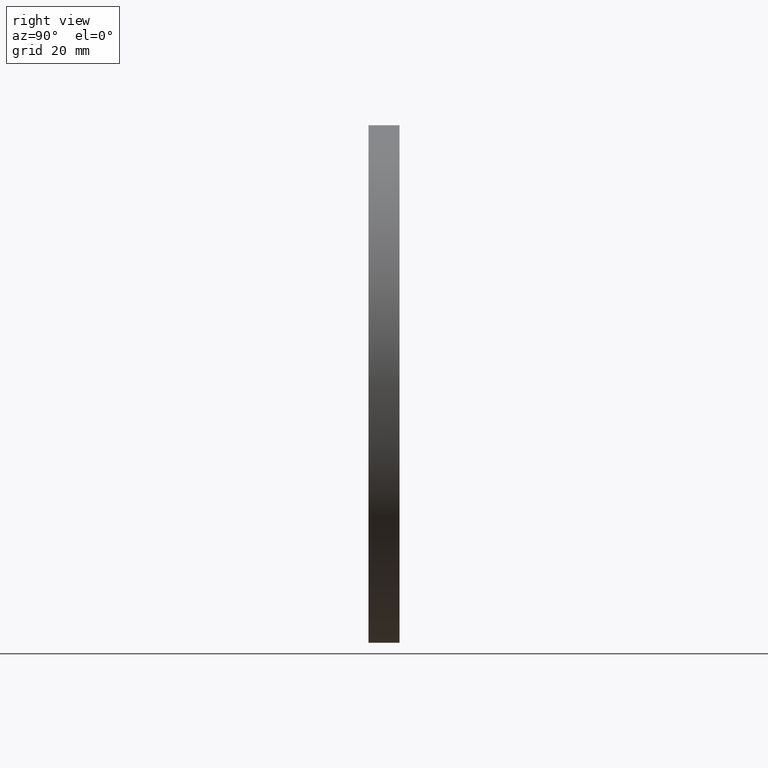
[diagram: clean part render]
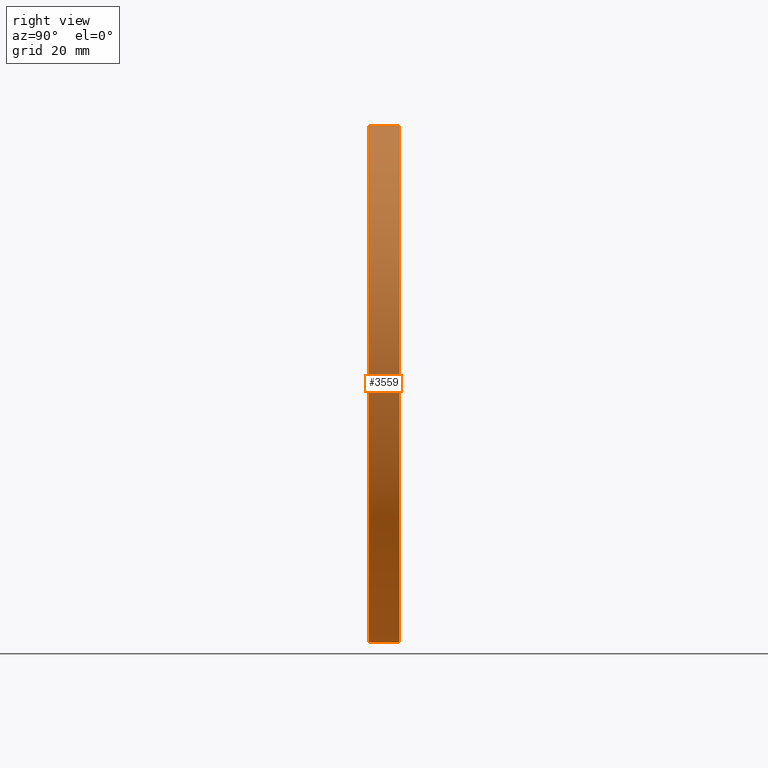
[diagram: same view with one face highlighted and labeled with its STEP entity id]
A machine part, right view. The second image highlights one B-rep face of the part: STEP entity #3559.
In plain terms, the highlighted cylindrical surface (partial cylindrical patch) has radius 50 mm, axis along (-0, -1, -0).
Its self-contained STEP definition (entity closure, byte-faithful):
#72 = DIRECTION ( 'NONE',  ( 0.0000000000000000000, 1.000000000000000000, 0.0000000000000000000 ) ) ;
#790 = CYLINDRICAL_SURFACE ( 'NONE', #5783, 50.00000000000000000 ) ;
#1273 = DIRECTION ( 'NONE',  ( -0.0000000000000000000, -1.000000000000000000, -0.0000000000000000000 ) ) ;
#1448 = VECTOR ( 'NONE', #1518, 1000.000000000000000 ) ;
#1484 = CIRCLE ( 'NONE', #4816, 50.00000000000000000 ) ;
#1518 = DIRECTION ( 'NONE',  ( -0.0000000000000000000, -1.000000000000000000, -0.0000000000000000000 ) ) ;
#1934 = EDGE_CURVE ( 'NONE', #9215, #10400, #6468, .T. ) ;
#2403 = EDGE_LOOP ( 'NONE', ( #7506, #8965, #5591, #7269 ) ) ;
#3350 = LINE ( 'NONE', #4761, #1448 ) ;
#3521 = CARTESIAN_POINT ( 'NONE',  ( 0.0000000000000000000, 0.0000000000000000000, 0.0000000000000000000 ) ) ;
#3559 = ADVANCED_FACE ( 'NONE', ( #11130 ), #790, .T. ) ;
#4320 = EDGE_CURVE ( 'NONE', #9215, #8407, #1484, .T. ) ;
#4761 = CARTESIAN_POINT ( 'NONE',  ( 0.0000000000000000000, 6.000000000000000000, -50.00000000000000000 ) ) ;
#4816 = AXIS2_PLACEMENT_3D ( 'NONE', #8939, #72, #7253 ) ;
#5066 = CARTESIAN_POINT ( 'NONE',  ( 0.0000000000000000000, 0.0000000000000000000, -50.00000000000000000 ) ) ;
#5337 = CIRCLE ( 'NONE', #10084, 50.00000000000000000 ) ;
#5443 = EDGE_CURVE ( 'NONE', #10400, #5971, #5337, .T. ) ;
#5507 = VECTOR ( 'NONE', #8520, 1000.000000000000000 ) ;
#5591 = ORIENTED_EDGE ( 'NONE', *, *, #5443, .T. ) ;
#5663 = CARTESIAN_POINT ( 'NONE',  ( 0.0000000000000000000, 6.000000000000000000, 0.0000000000000000000 ) ) ;
#5783 = AXIS2_PLACEMENT_3D ( 'NONE', #5663, #1273, #7447 ) ;
#5971 = VERTEX_POINT ( 'NONE', #5066 ) ;
#6425 = DIRECTION ( 'NONE',  ( 0.0000000000000000000, 1.000000000000000000, 0.0000000000000000000 ) ) ;
#6468 = LINE ( 'NONE', #6794, #5507 ) ;
#6794 = CARTESIAN_POINT ( 'NONE',  ( 6.123233995736766100E-015, 6.000000000000000000, 50.00000000000000000 ) ) ;
#7109 = CARTESIAN_POINT ( 'NONE',  ( 6.123233995736766100E-015, 0.0000000000000000000, 50.00000000000000000 ) ) ;
#7253 = DIRECTION ( 'NONE',  ( 0.0000000000000000000, 0.0000000000000000000, 1.000000000000000000 ) ) ;
#7269 = ORIENTED_EDGE ( 'NONE', *, *, #8591, .F. ) ;
#7321 = DIRECTION ( 'NONE',  ( 0.0000000000000000000, 0.0000000000000000000, 1.000000000000000000 ) ) ;
#7447 = DIRECTION ( 'NONE',  ( 0.0000000000000000000, 0.0000000000000000000, -1.000000000000000000 ) ) ;
#7506 = ORIENTED_EDGE ( 'NONE', *, *, #4320, .F. ) ;
#7937 = CARTESIAN_POINT ( 'NONE',  ( 0.0000000000000000000, 6.000000000000000000, -50.00000000000000000 ) ) ;
#8407 = VERTEX_POINT ( 'NONE', #7937 ) ;
#8520 = DIRECTION ( 'NONE',  ( -0.0000000000000000000, -1.000000000000000000, -0.0000000000000000000 ) ) ;
#8531 = CARTESIAN_POINT ( 'NONE',  ( 6.123233995736766100E-015, 6.000000000000000000, 50.00000000000000000 ) ) ;
#8591 = EDGE_CURVE ( 'NONE', #8407, #5971, #3350, .T. ) ;
#8939 = CARTESIAN_POINT ( 'NONE',  ( 0.0000000000000000000, 6.000000000000000000, 0.0000000000000000000 ) ) ;
#8965 = ORIENTED_EDGE ( 'NONE', *, *, #1934, .T. ) ;
#9215 = VERTEX_POINT ( 'NONE', #8531 ) ;
#10084 = AXIS2_PLACEMENT_3D ( 'NONE', #3521, #6425, #7321 ) ;
#10400 = VERTEX_POINT ( 'NONE', #7109 ) ;
#11130 = FACE_OUTER_BOUND ( 'NONE', #2403, .T. ) ;